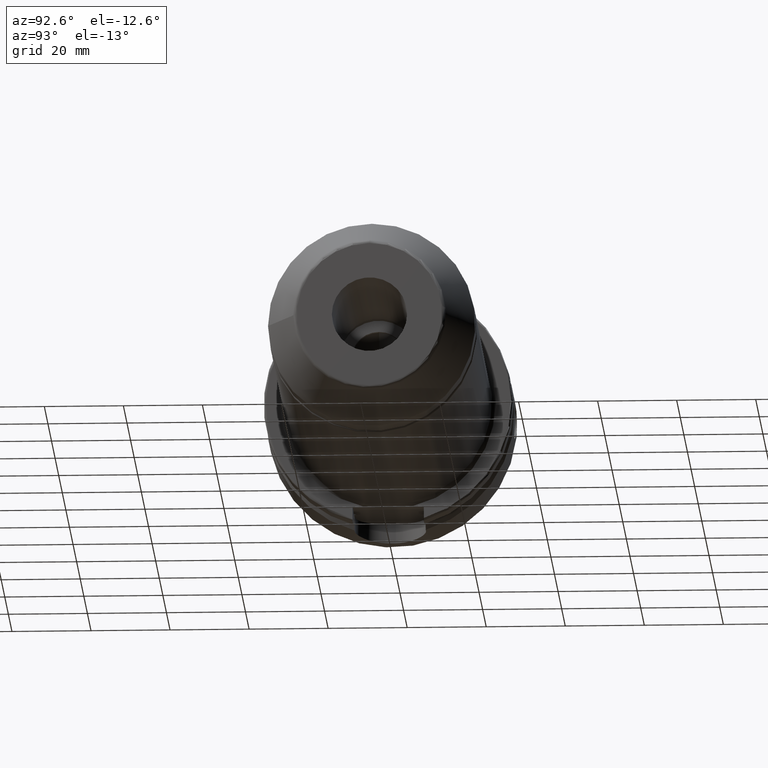
[diagram: clean part render]
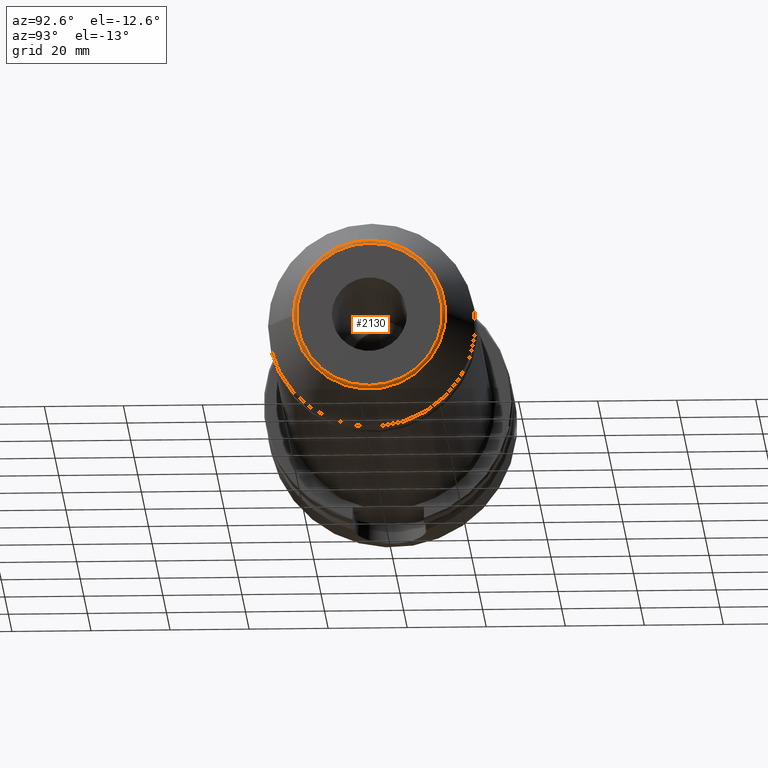
[diagram: same view with one face highlighted and labeled with its STEP entity id]
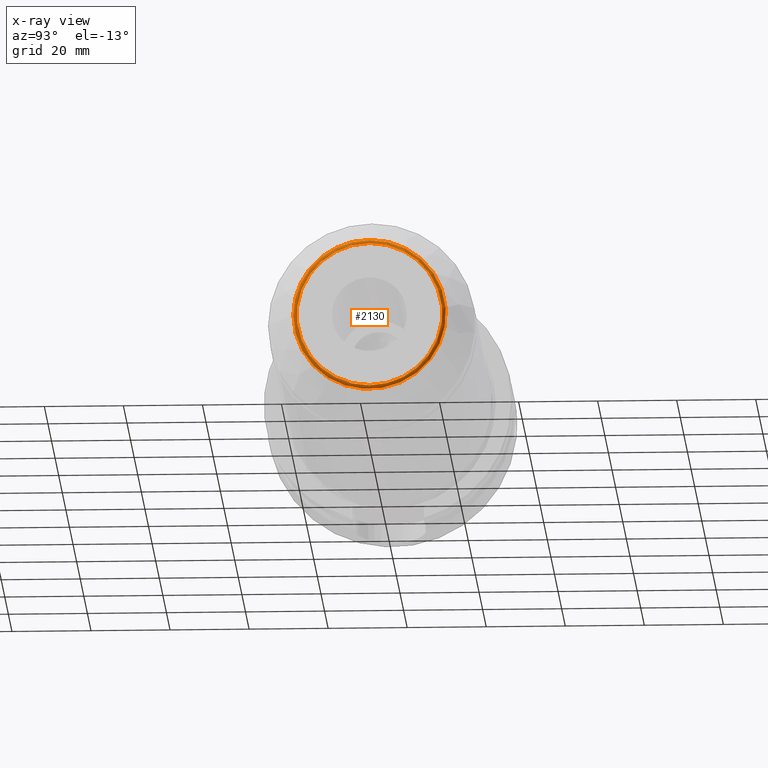
[diagram: x-ray of the same camera — body ghosted, the highlighted face saturated]
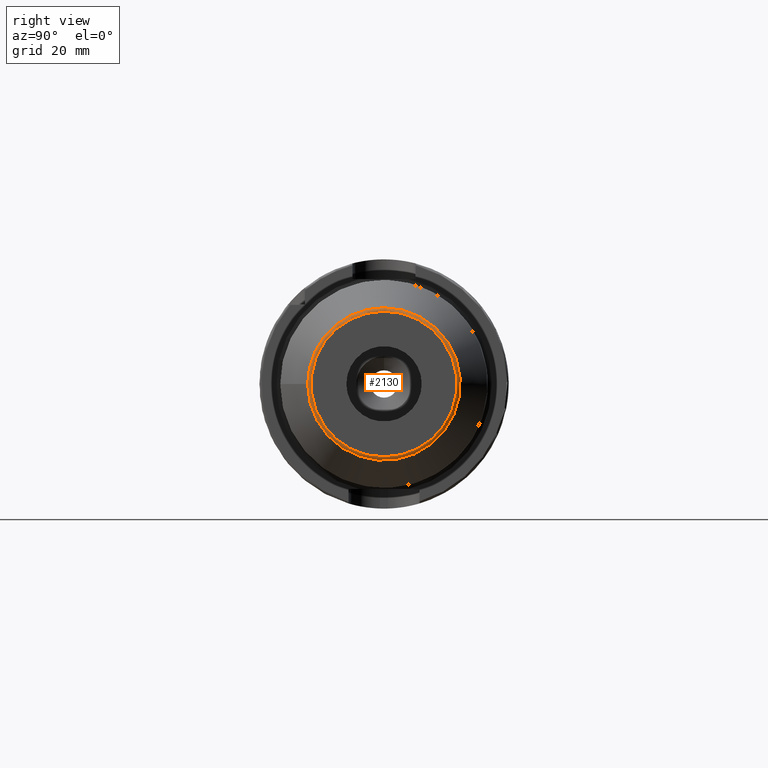
[diagram: same view with one face highlighted and labeled with its STEP entity id]
A machine part, auxiliary view. The second image highlights one B-rep face of the part: STEP entity #2130.
The next image is the same camera in x-ray: the body ghosted, the highlighted face saturated — about 0% of this face is hidden behind the body in this view.
A second angle (right view) of the same face is appended — the face is thin or edge-on in the first view.
In plain terms, the highlighted toroidal blend (fillet) surface has major radius 18.4226 mm and minor (blend) radius 1 mm.
Its self-contained STEP definition (entity closure, byte-faithful):
#174=TOROIDAL_SURFACE('',#2305,18.4226497308104,1.);
#208=FACE_OUTER_BOUND('',#334,.T.);
#334=EDGE_LOOP('',(#1456,#1457,#1458,#1459,#1460));
#710=CIRCLE('',#2306,18.4226497308104);
#711=CIRCLE('',#2307,1.);
#712=CIRCLE('',#2308,19.2886751345948);
#713=CIRCLE('',#2309,19.2886751345948);
#854=VERTEX_POINT('',#3289);
#855=VERTEX_POINT('',#3291);
#856=VERTEX_POINT('',#3293);
#1087=EDGE_CURVE('',#854,#854,#710,.T.);
#1088=EDGE_CURVE('',#854,#855,#711,.T.);
#1089=EDGE_CURVE('',#855,#856,#712,.T.);
#1090=EDGE_CURVE('',#856,#855,#713,.T.);
#1456=ORIENTED_EDGE('',*,*,#1087,.T.);
#1457=ORIENTED_EDGE('',*,*,#1088,.T.);
#1458=ORIENTED_EDGE('',*,*,#1089,.T.);
#1459=ORIENTED_EDGE('',*,*,#1090,.T.);
#1460=ORIENTED_EDGE('',*,*,#1088,.F.);
#2130=ADVANCED_FACE('',(#208),#174,.T.);
#2305=AXIS2_PLACEMENT_3D('',#3288,#2629,#2630);
#2306=AXIS2_PLACEMENT_3D('',#3290,#2631,#2632);
#2307=AXIS2_PLACEMENT_3D('',#3292,#2633,#2634);
#2308=AXIS2_PLACEMENT_3D('',#3294,#2635,#2636);
#2309=AXIS2_PLACEMENT_3D('',#3295,#2637,#2638);
#2629=DIRECTION('center_axis',(1.,0.,0.));
#2630=DIRECTION('ref_axis',(0.,0.,-1.));
#2631=DIRECTION('center_axis',(-1.,0.,0.));
#2632=DIRECTION('ref_axis',(0.,-1.,1.83697019872103E-16));
#2633=DIRECTION('center_axis',(0.,-1.,-1.22464679914735E-16));
#2634=DIRECTION('ref_axis',(0.,-1.22464679914735E-16,1.));
#2635=DIRECTION('center_axis',(1.,0.,0.));
#2636=DIRECTION('ref_axis',(0.,-1.,3.06161699786838E-17));
#2637=DIRECTION('center_axis',(1.,0.,0.));
#2638=DIRECTION('ref_axis',(0.,-1.,3.06161699786838E-17));
#3288=CARTESIAN_POINT('Origin',(129.,0.,0.));
#3289=CARTESIAN_POINT('',(130.,-2.25612390246498E-15,18.4226497308104));
#3290=CARTESIAN_POINT('Origin',(130.,0.,0.));
#3291=CARTESIAN_POINT('',(129.5,-2.36218142633747E-15,19.2886751345948));
#3292=CARTESIAN_POINT('Origin',(129.,-2.25612390246498E-15,18.4226497308104));
#3293=CARTESIAN_POINT('',(129.5,-19.2886751345948,-2.36218142633747E-15));
#3294=CARTESIAN_POINT('Origin',(129.5,0.,-2.95272678292184E-15));
#3295=CARTESIAN_POINT('Origin',(129.5,0.,-2.95272678292184E-15));